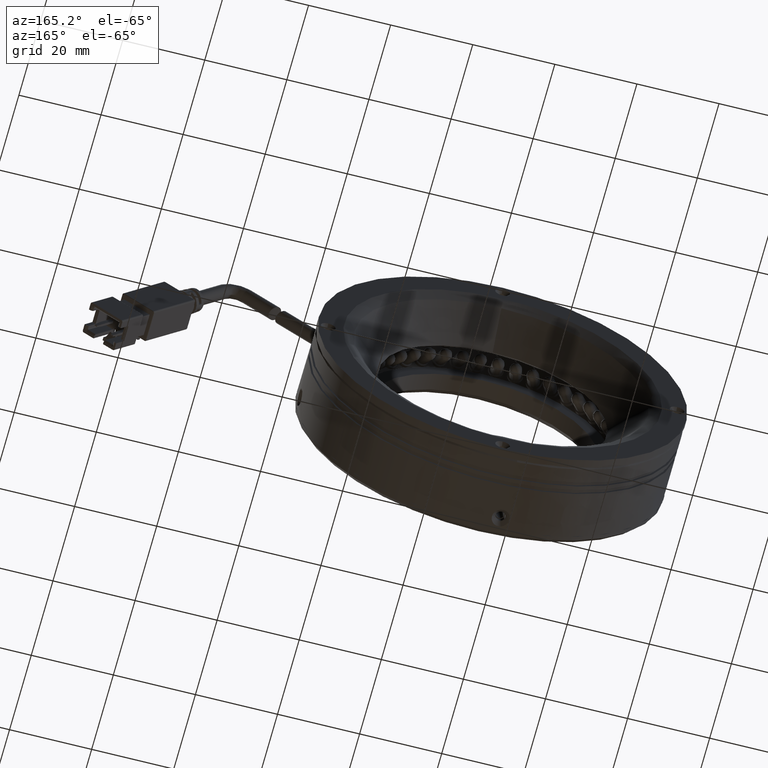
[diagram: clean part render]
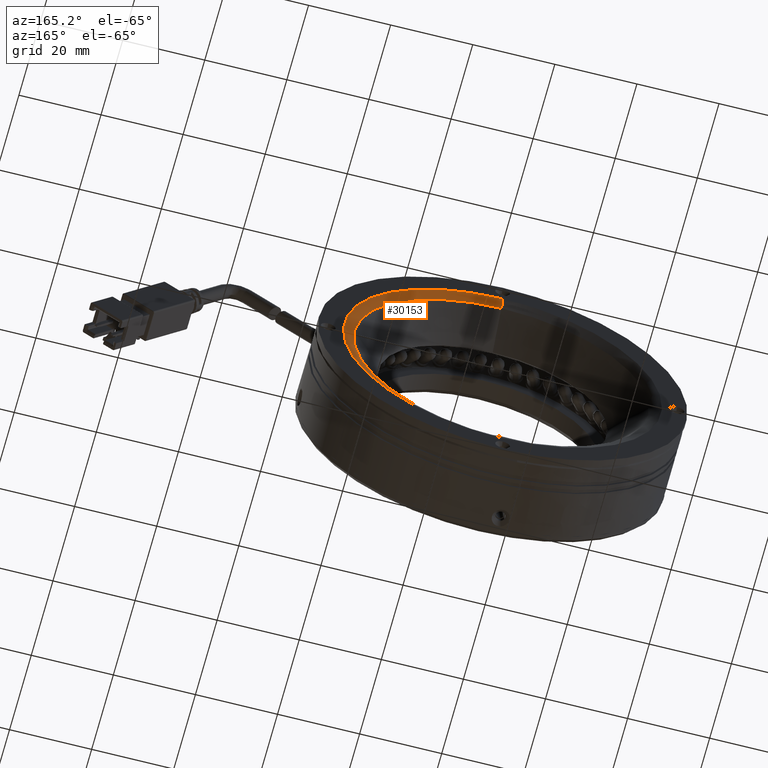
[diagram: same view with one face highlighted and labeled with its STEP entity id]
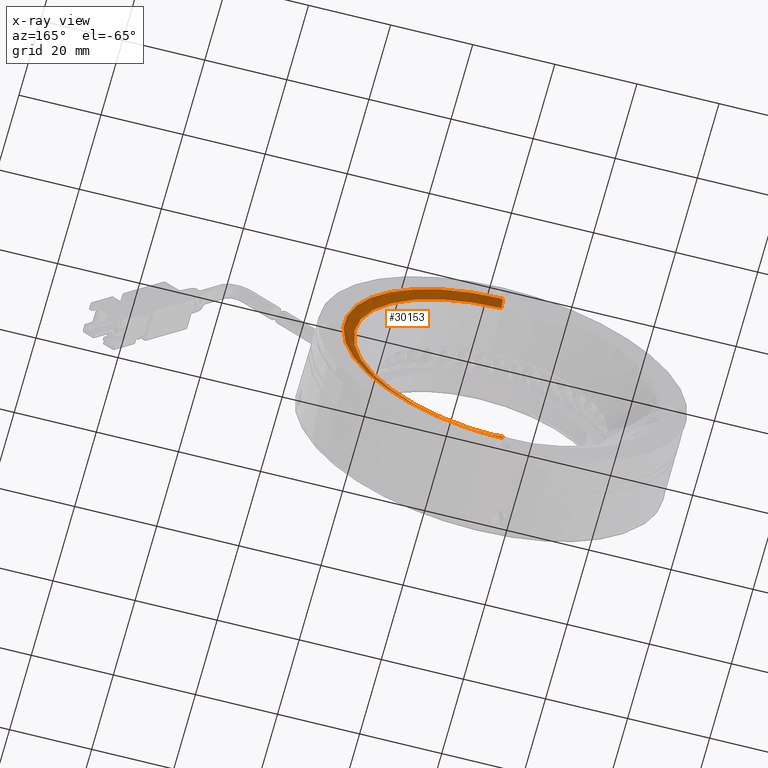
[diagram: x-ray of the same camera — body ghosted, the highlighted face saturated]
A machine part, auxiliary view. The second image highlights one B-rep face of the part: STEP entity #30153.
The next image is the same camera in x-ray: the body ghosted, the highlighted face saturated — about 0% of this face is hidden behind the body in this view.
In plain terms, the highlighted face is a freeform B-spline surface patch.
Its self-contained STEP definition (entity closure, byte-faithful):
#1303 =( BOUNDED_SURFACE ( )  B_SPLINE_SURFACE ( 3, 3, ( 
 ( #64268, #85664, #23365, #96111 ),
 ( #33797, #106662, #44244, #117132 ),
 ( #54754, #127615, #65165, #2888 ),
 ( #75695, #13350, #86121, #23813 ) ),
 .UNSPECIFIED., .F., .F., .F. ) 
 B_SPLINE_SURFACE_WITH_KNOTS ( ( 4, 4 ),
 ( 4, 4 ),
 ( 0.0000000000000000000, 1.000000000000000000 ),
 ( 0.0000000000000000000, 1.000000000000000000 ),
 .UNSPECIFIED. ) 
 GEOMETRIC_REPRESENTATION_ITEM ( )  RATIONAL_B_SPLINE_SURFACE ( (
 ( 1.000000000000000000, 0.3333333333333334300, 0.3333333333333334300, 1.000000000000000000),
 ( 0.9492530216741906800, 0.3164176738913969700, 0.3164176738913969700, 0.9492530216741906800),
 ( 0.9492530216741906800, 0.3164176738913969700, 0.3164176738913969700, 0.9492530216741906800),
 ( 1.000000000000000000, 0.3333333333333334300, 0.3333333333333334300, 1.000000000000000000) ) ) 
 REPRESENTATION_ITEM ( '' )  SURFACE ( )  );
#2888 = CARTESIAN_POINT ( 'NONE',  ( -53.99004085520082400, 38.56736432820486000, 32.96224882307326700 ) ) ;
#4710 = ORIENTED_EDGE ( 'NONE', *, *, #50095, .T. ) ;
#9651 = CARTESIAN_POINT ( 'NONE',  ( -53.99004085520083900, 37.80719313704840100, -3.797922368083184200 ) ) ;
#10390 = AXIS2_PLACEMENT_3D ( 'NONE', #9651, #82462, #20167 ) ;
#12947 = VERTEX_POINT ( 'NONE', #30715 ) ;
#13202 = CARTESIAN_POINT ( 'NONE',  ( -53.99004085520083900, 34.97876601230222300, -42.62634949282938400 ) ) ;
#13238 = VERTEX_POINT ( 'NONE', #118576 ) ;
#13350 = CARTESIAN_POINT ( 'NONE',  ( 18.00995914479914400, 37.80719313704840100, -39.79792236808318500 ) ) ;
#14911 = CARTESIAN_POINT ( 'NONE',  ( 23.66681339429154500, 38.97876601230221600, -42.62634949282938400 ) ) ;
#20167 = DIRECTION ( 'NONE',  ( 0.0000000000000000000, 0.0000000000000000000, -1.000000000000000000 ) ) ;
#23365 = CARTESIAN_POINT ( 'NONE',  ( 23.66681339429155200, 38.97876601230223100, 35.03050475666299900 ) ) ;
#23675 = DIRECTION ( 'NONE',  ( 0.0000000000000000000, 0.0000000000000000000, -1.000000000000000000 ) ) ;
#23813 = CARTESIAN_POINT ( 'NONE',  ( -53.99004085520083200, 37.80719313704840100, 32.20207763191681500 ) ) ;
#25821 = ORIENTED_EDGE ( 'NONE', *, *, #95469, .T. ) ;
#28761 = CARTESIAN_POINT ( 'NONE',  ( -53.99004085520083200, 34.97876601230222300, 35.03050475666301400 ) ) ;
#30153 = ADVANCED_FACE ( 'NONE', ( #76702 ), #1303, .T. ) ;
#30715 = CARTESIAN_POINT ( 'NONE',  ( -53.99004085520083900, 38.97876601230222300, -42.62634949282938400 ) ) ;
#33797 = CARTESIAN_POINT ( 'NONE',  ( -53.99004085520083200, 38.97876601230223100, -41.55130508457061500 ) ) ;
#39204 = DIRECTION ( 'NONE',  ( 0.0000000000000000000, 0.0000000000000000000, 1.000000000000000000 ) ) ;
#41308 = EDGE_CURVE ( 'NONE', #98399, #85762, #89938, .T. ) ;
#44244 = CARTESIAN_POINT ( 'NONE',  ( 21.51672457777402400, 38.97876601230223800, 33.95546034840423700 ) ) ;
#50095 = EDGE_CURVE ( 'NONE', #13238, #85762, #132229, .T. ) ;
#54754 = CARTESIAN_POINT ( 'NONE',  ( -53.99004085520083200, 38.56736432820486000, -40.55809355923963700 ) ) ;
#56291 = CARTESIAN_POINT ( 'NONE',  ( 23.66681339429155500, 38.97876601230221600, 35.03050475666300700 ) ) ;
#64268 = CARTESIAN_POINT ( 'NONE',  ( -53.99004085520083900, 38.97876601230222300, -42.62634949282938400 ) ) ;
#64431 = CARTESIAN_POINT ( 'NONE',  ( -53.99004085520083900, 37.80719313704840100, 32.20207763191682200 ) ) ;
#65165 = CARTESIAN_POINT ( 'NONE',  ( 19.53030152711204800, 38.56736432820486000, 32.96224882307324600 ) ) ;
#68548 = ORIENTED_EDGE ( 'NONE', *, *, #41308, .F. ) ;
#70576 = AXIS2_PLACEMENT_3D ( 'NONE', #28761, #101556, #39204 ) ;
#75695 = CARTESIAN_POINT ( 'NONE',  ( -53.99004085520083900, 37.80719313704840100, -39.79792236808317800 ) ) ;
#76702 = FACE_OUTER_BOUND ( 'NONE', #104905, .T. ) ;
#79351 = EDGE_CURVE ( 'NONE', #98399, #12947, #112232, .T. ) ;
#82462 = DIRECTION ( 'NONE',  ( 0.0000000000000000000, -1.000000000000000000, 0.0000000000000000000 ) ) ;
#85664 = CARTESIAN_POINT ( 'NONE',  ( 23.66681339429154500, 38.97876601230223100, -42.62634949282938400 ) ) ;
#85762 = VERTEX_POINT ( 'NONE', #64431 ) ;
#85994 = DIRECTION ( 'NONE',  ( 1.000000000000000000, 0.0000000000000000000, 0.0000000000000000000 ) ) ;
#86121 = CARTESIAN_POINT ( 'NONE',  ( 18.00995914479915100, 37.80719313704840100, 32.20207763191680100 ) ) ;
#87643 = CARTESIAN_POINT ( 'NONE',  ( -53.99004085520083900, 38.97876601230222300, -42.62634949282938400 ) ) ;
#89938 = CIRCLE ( 'NONE', #70576, 4.000000000000003600 ) ;
#95469 = EDGE_CURVE ( 'NONE', #12947, #13238, #113336, .T. ) ;
#96111 = CARTESIAN_POINT ( 'NONE',  ( -53.99004085520083200, 38.97876601230222300, 35.03050475666301400 ) ) ;
#98399 = VERTEX_POINT ( 'NONE', #99400 ) ;
#99400 = CARTESIAN_POINT ( 'NONE',  ( -53.99004085520083200, 38.97876601230222300, 35.03050475666301400 ) ) ;
#101556 = DIRECTION ( 'NONE',  ( -1.000000000000000000, 0.0000000000000000000, 1.224646799147353200E-016 ) ) ;
#104905 = EDGE_LOOP ( 'NONE', ( #68548, #112573, #25821, #4710 ) ) ;
#106662 = CARTESIAN_POINT ( 'NONE',  ( 21.51672457777401700, 38.97876601230223800, -41.55130508457062200 ) ) ;
#112232 =( BOUNDED_CURVE ( )  B_SPLINE_CURVE ( 3, ( #129157, #56291, #14911, #87643 ),
 .UNSPECIFIED., .F., .T. ) 
 B_SPLINE_CURVE_WITH_KNOTS ( ( 4, 4 ),
 ( 0.0000000000000000000, 1.000000000000000000 ),
 .UNSPECIFIED. ) 
 CURVE ( )  GEOMETRIC_REPRESENTATION_ITEM ( )  RATIONAL_B_SPLINE_CURVE ( ( 1.000000000000000000, 0.3333333333333333700, 0.3333333333333333700, 1.000000000000000000 ) ) 
 REPRESENTATION_ITEM ( '' )  );
#112573 = ORIENTED_EDGE ( 'NONE', *, *, #79351, .T. ) ;
#113336 = CIRCLE ( 'NONE', #121724, 4.000000000000003600 ) ;
#117132 = CARTESIAN_POINT ( 'NONE',  ( -53.99004085520082400, 38.97876601230223100, 33.95546034840425200 ) ) ;
#118576 = CARTESIAN_POINT ( 'NONE',  ( -53.99004085520083200, 37.80719313704840100, -39.79792236808318500 ) ) ;
#121724 = AXIS2_PLACEMENT_3D ( 'NONE', #13202, #85994, #23675 ) ;
#127615 = CARTESIAN_POINT ( 'NONE',  ( 19.53030152711204100, 38.56736432820486000, -40.55809355923963700 ) ) ;
#129157 = CARTESIAN_POINT ( 'NONE',  ( -53.99004085520083200, 38.97876601230222300, 35.03050475666301400 ) ) ;
#132229 = CIRCLE ( 'NONE', #10390, 36.00000000000000000 ) ;